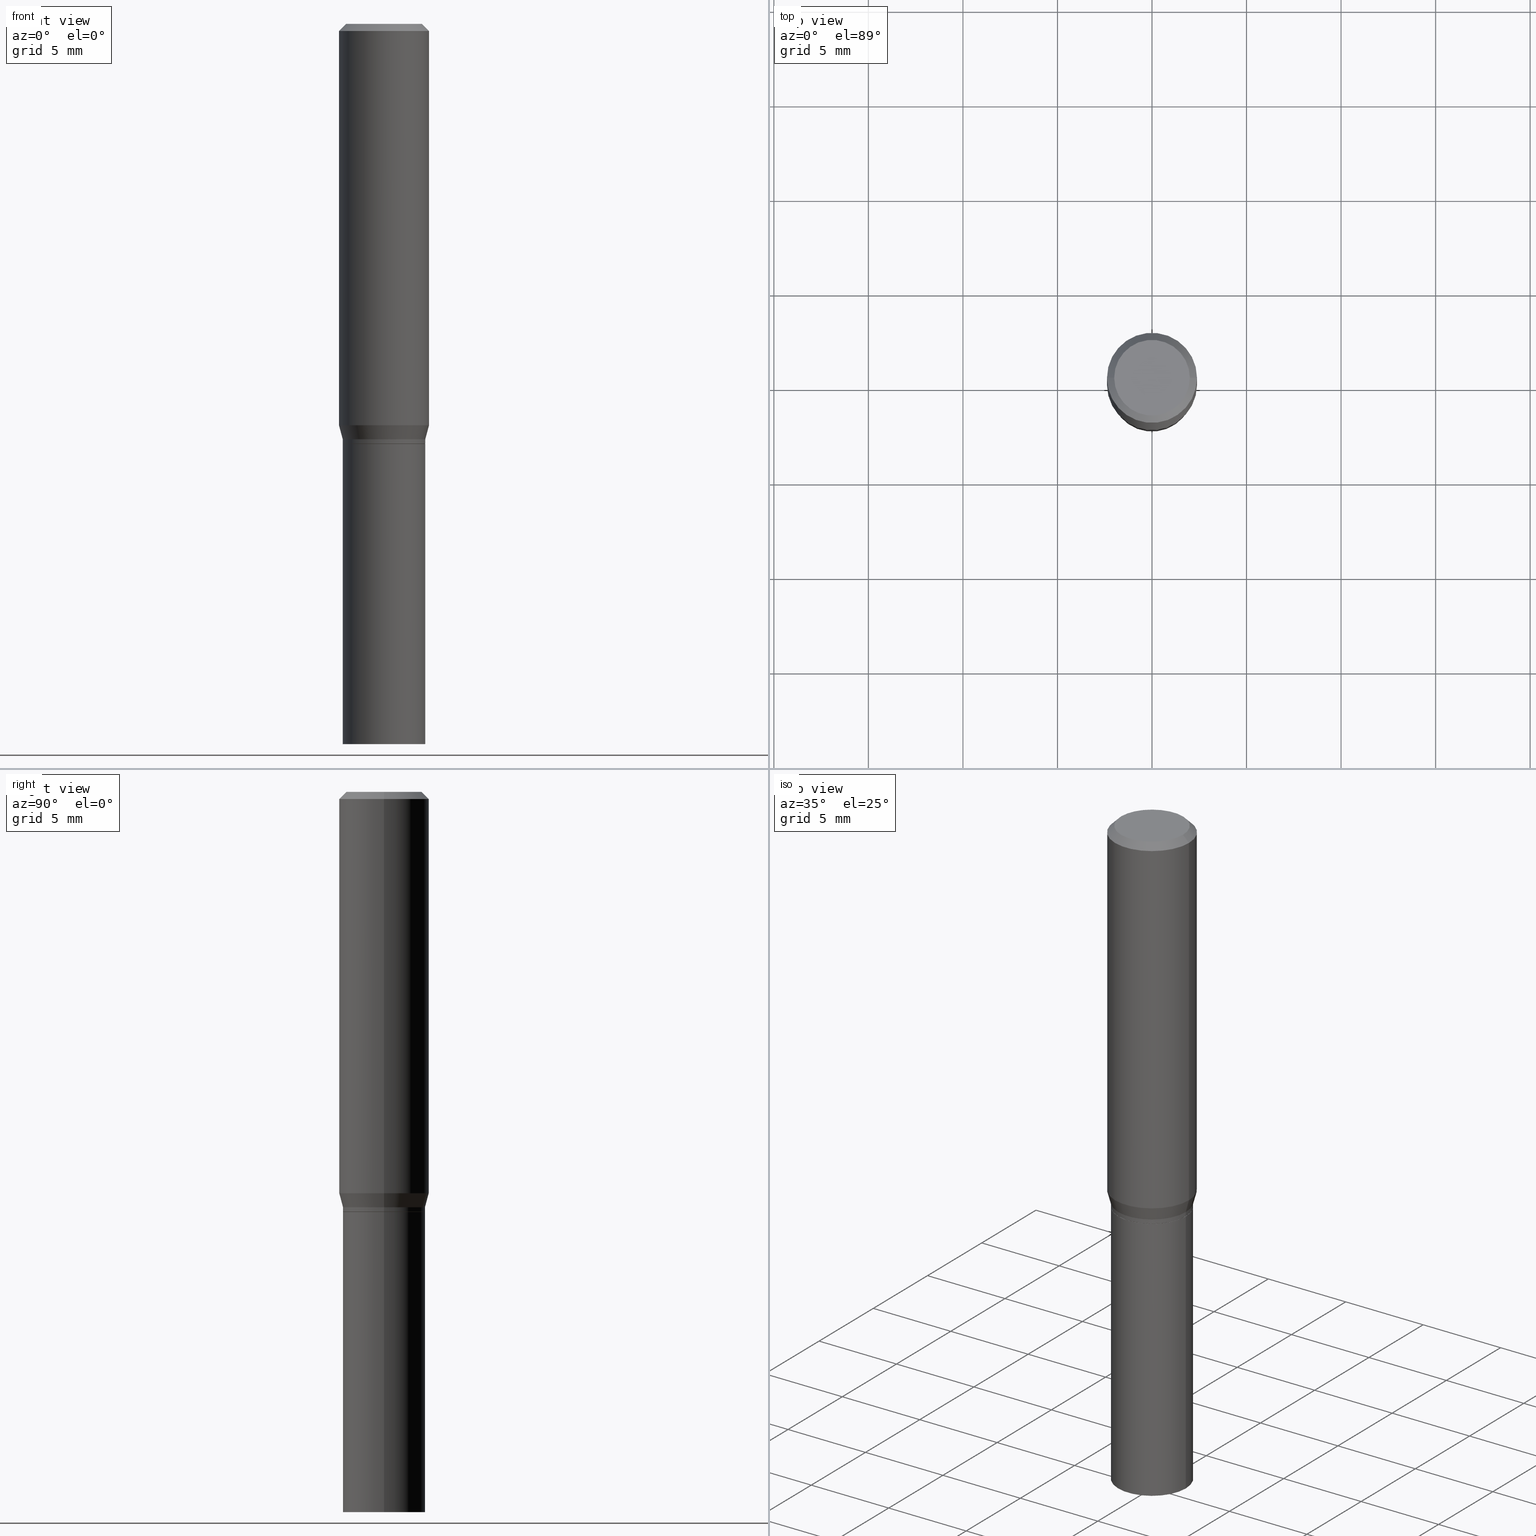
[diagram: canonical four-view strip — front | top / right | iso, engineering-drawing reading convention]
A machine part, canonical four-view strip (front | top / right | iso — engineering-drawing reading convention). The complete STEP part file that produces these views, byte-faithful:
ISO-10303-21;
HEADER;
FILE_DESCRIPTION (( 'STEP AP203' ),
    '1' );
FILE_NAME ('30521.STEP',
    '2024-03-13T16:14:01',
    ( '' ),
    ( '' ),
    'SwSTEP 2.0',
    'SolidWorks 2023',
    '' );
FILE_SCHEMA (( 'CONFIG_CONTROL_DESIGN' ));
ENDSEC;

DATA;
#1 = CALENDAR_DATE ( 2024, 13, 3 ) ;
#2 = ORIENTED_EDGE ( 'NONE', *, *, #67, .T. ) ;
#3 = ADVANCED_BREP_SHAPE_REPRESENTATION ( '30521', ( #286, #305, #405 ), #205 ) ;
#4 = CLOSED_SHELL ( 'NONE', ( #255, #117, #10, #383, #225, #243, #443, #290, #277, #280, #401, #398 ) ) ;
#5 = LOCAL_TIME ( 12, 14, 1.000000000000000000, #237 ) ;
#6 = CARTESIAN_POINT ( 'NONE',  ( -0.09375000000000001388, -2.252360534472345221E-15, -0.8358900037009627804 ) ) ;
#7 = ORIENTED_EDGE ( 'NONE', *, *, #369, .T. ) ;
#8 = CARTESIAN_POINT ( 'NONE',  ( 2.139785205411994522E-29, -3.055046171487752730E-15, -0.8750000000000001110 ) ) ;
#9 = ORIENTED_EDGE ( 'NONE', *, *, #37, .T. ) ;
#10 = ADVANCED_FACE ( 'NONE', ( #170 ), #36, .T. ) ;
#11 = VERTEX_POINT ( 'NONE', #320 ) ;
#12 = APPLICATION_PROTOCOL_DEFINITION ( 'international standard', 'config_control_design', 1994, #352 ) ;
#13 = LINE ( 'NONE', #135, #156 ) ;
#14 = ORIENTED_EDGE ( 'NONE', *, *, #67, .F. ) ;
#15 = CIRCLE ( 'NONE', #201, 0.08595000000000001250 ) ;
#16 = LOCAL_TIME ( 12, 14, 1.000000000000000000, #431 ) ;
#17 = EDGE_CURVE ( 'NONE', #178, #75, #13, .T. ) ;
#18 = PERSON_AND_ORGANIZATION ( #295, #247 ) ;
#19 = LINE ( 'NONE', #174, #322 ) ;
#20 = LINE ( 'NONE', #259, #432 ) ;
#21 = CIRCLE ( 'NONE', #307, 0.08594999999999998475 ) ;
#22 = CYLINDRICAL_SURFACE ( 'NONE', #144, 0.08594999999999998475 ) ;
#23 = FACE_OUTER_BOUND ( 'NONE', #445, .T. ) ;
#24 = ORIENTED_EDGE ( 'NONE', *, *, #373, .T. ) ;
#25 = APPROVAL ( #433, 'UNSPECIFIED' ) ;
#26 = LINE ( 'NONE', #390, #71 ) ;
#27 = DIRECTION ( 'NONE',  ( 1.000000000000000000, -6.982962677686265922E-15, 4.876176775795935793E-29 ) ) ;
#28 = CARTESIAN_POINT ( 'NONE',  ( -0.08594999999999998475, 6.107114813858060014E-16, -4.227824710074091590E-30 ) ) ;
#29 = EDGE_LOOP ( 'NONE', ( #95, #169, #196, #409 ) ) ;
#30 = LINE ( 'NONE', #420, #44 ) ;
#31 =( NAMED_UNIT ( * ) SI_UNIT ( $, .STERADIAN. ) SOLID_ANGLE_UNIT ( ) );
#32 = APPROVAL_DATE_TIME ( #274, #192 ) ;
#33 = CARTESIAN_POINT ( 'NONE',  ( 0.08594999999999998475, -5.837407650411852403E-15, -1.500000000000000222 ) ) ;
#34 = CARTESIAN_POINT ( 'NONE',  ( 3.668203209277704895E-29, -5.237222008264718177E-15, -1.500000000000000222 ) ) ;
#35 = PERSON_AND_ORGANIZATION ( #295, #247 ) ;
#36 = CONICAL_SURFACE ( 'NONE', #256, 0.09375000000000001388, 0.7853981633974473908 ) ;
#37 = EDGE_CURVE ( 'NONE', #454, #216, #172, .T. ) ;
#38 = APPROVAL_PERSON_ORGANIZATION ( #272, #192, #424 ) ;
#39 = CARTESIAN_POINT ( 'NONE',  ( -0.08595000000000004026, -2.442588949432524535E-15, -0.8745000000000000551 ) ) ;
#40 = VERTEX_POINT ( 'NONE', #39 ) ;
#41 = VERTEX_POINT ( 'NONE', #334 ) ;
#42 = EDGE_CURVE ( 'NONE', #317, #75, #412, .T. ) ;
#43 = APPROVAL_DATE_TIME ( #224, #25 ) ;
#44 = VECTOR ( 'NONE', #381, 39.37007874015748143 ) ;
#45 = AXIS2_PLACEMENT_3D ( 'NONE', #328, #415, #215 ) ;
#46 = EDGE_LOOP ( 'NONE', ( #64, #91, #311, #84 ) ) ;
#47 = EDGE_CURVE ( 'NONE', #40, #113, #76, .T. ) ;
#48 = CC_DESIGN_APPROVAL ( #55, ( #465 ) ) ;
#49 = ORIENTED_EDGE ( 'NONE', *, *, #362, .T. ) ;
#50 = ORIENTED_EDGE ( 'NONE', *, *, #362, .F. ) ;
#51 = VECTOR ( 'NONE', #53, 39.37007874015748143 ) ;
#52 = AXIS2_PLACEMENT_3D ( 'NONE', #34, #150, #452 ) ;
#53 = DIRECTION ( 'NONE',  ( -2.445468806185136877E-29, 3.491481338843145188E-15, 1.000000000000000000 ) ) ;
#54 = CARTESIAN_POINT ( 'NONE',  ( 0.000000000000000000, 0.000000000000000000, 0.000000000000000000 ) ) ;
#55 = APPROVAL ( #347, 'UNSPECIFIED' ) ;
#56 = DIRECTION ( 'NONE',  ( -2.445468806185136597E-29, 3.491481338843145583E-15, 1.000000000000000000 ) ) ;
#57 = DIRECTION ( 'NONE',  ( -2.445468806185136597E-29, 3.491481338843145583E-15, 1.000000000000000000 ) ) ;
#58 = CIRCLE ( 'NONE', #157, 0.08595000000000004026 ) ;
#59 = DIRECTION ( 'NONE',  ( -2.445468806185136597E-29, 3.491481338843145583E-15, 1.000000000000000000 ) ) ;
#60 = ADVANCED_FACE ( 'NONE', ( #309 ), #80, .F. ) ;
#61 = ORIENTED_EDGE ( 'NONE', *, *, #140, .T. ) ;
#62 = FACE_OUTER_BOUND ( 'NONE', #422, .T. ) ;
#63 = DIRECTION ( 'NONE',  ( 1.000000000000000000, -6.982962677686267499E-15, 4.876807983162778740E-29 ) ) ;
#64 = ORIENTED_EDGE ( 'NONE', *, *, #140, .F. ) ;
#65 = DIRECTION ( 'NONE',  ( -2.438088387897960049E-29, 3.491481338843145188E-15, 1.000000000000000000 ) ) ;
#66 = CARTESIAN_POINT ( 'NONE',  ( 2.138562471008902281E-29, -3.053300430818330832E-15, -0.8745000000000000551 ) ) ;
#67 = EDGE_CURVE ( 'NONE', #124, #239, #19, .T. ) ;
#68 = CALENDAR_DATE ( 2024, 13, 3 ) ;
#69 = CYLINDRICAL_SURFACE ( 'NONE', #210, 0.08594999999999998475 ) ;
#70 = FACE_OUTER_BOUND ( 'NONE', #29, .T. ) ;
#71 = VECTOR ( 'NONE', #179, 39.37007874015748143 ) ;
#72 = AXIS2_PLACEMENT_3D ( 'NONE', #279, #406, #444 ) ;
#73 = ORIENTED_EDGE ( 'NONE', *, *, #187, .T. ) ;
#74 = CARTESIAN_POINT ( 'NONE',  ( -0.08544999999999998430, -2.445238176606635736E-15, -0.8750000000000001110 ) ) ;
#75 = VERTEX_POINT ( 'NONE', #380 ) ;
#76 = LINE ( 'NONE', #236, #407 ) ;
#77 = DATE_TIME_ROLE ( 'classification_date' ) ;
#78 = DIRECTION ( 'NONE',  ( 1.000000000000000000, -6.982962677686268288E-15, 0.000000000000000000 ) ) ;
#79 = ORIENTED_EDGE ( 'NONE', *, *, #17, .F. ) ;
#80 = PLANE ( 'NONE',  #230 ) ;
#81 =( NAMED_UNIT ( * ) PLANE_ANGLE_UNIT ( ) SI_UNIT ( $, .RADIAN. ) );
#82 = AXIS2_PLACEMENT_3D ( 'NONE', #137, #349, #284 ) ;
#83 = EDGE_LOOP ( 'NONE', ( #249, #136, #208, #278 ) ) ;
#84 = ORIENTED_EDGE ( 'NONE', *, *, #198, .F. ) ;
#85 = DIRECTION ( 'NONE',  ( 0.000000000000000000, 0.000000000000000000, 1.000000000000000000 ) ) ;
#86 = EDGE_CURVE ( 'NONE', #113, #317, #288, .T. ) ;
#87 = ORIENTED_EDGE ( 'NONE', *, *, #132, .F. ) ;
#88 = APPROVAL_ROLE ( '' ) ;
#89 = EDGE_CURVE ( 'NONE', #447, #457, #127, .T. ) ;
#90 = CC_DESIGN_APPROVAL ( #25, ( #315 ) ) ;
#91 = ORIENTED_EDGE ( 'NONE', *, *, #42, .T. ) ;
#92 = DIRECTION ( 'NONE',  ( 1.000000000000000000, -6.982962677686265922E-15, 0.000000000000000000 ) ) ;
#93 = ORIENTED_EDGE ( 'NONE', *, *, #374, .F. ) ;
#94 = ADVANCED_FACE ( 'NONE', ( #302 ), #69, .T. ) ;
#95 = ORIENTED_EDGE ( 'NONE', *, *, #86, .F. ) ;
#96 = CARTESIAN_POINT ( 'NONE',  ( 0.000000000000000000, 0.000000000000000000, 0.000000000000000000 ) ) ;
#97 = DESIGN_CONTEXT ( 'detailed design', #352, 'design' ) ;
#98 = DIRECTION ( 'NONE',  ( -2.445468806185136597E-29, 3.491481338843145583E-15, 1.000000000000000000 ) ) ;
#99 = DIRECTION ( 'NONE',  ( 0.2588190451025214611, 1.565188264969621573E-15, 0.9659258262890682012 ) ) ;
#100 = DIRECTION ( 'NONE',  ( -2.445468806185136597E-29, 3.491481338843145583E-15, 1.000000000000000000 ) ) ;
#101 = CARTESIAN_POINT ( 'NONE',  ( 2.138562471008902281E-29, -3.053300430818330832E-15, -0.8745000000000000551 ) ) ;
#102 = CARTESIAN_POINT ( 'NONE',  ( -0.08595000000000001250, -2.409419876713514389E-15, -0.8649999999999998801 ) ) ;
#103 = ADVANCED_FACE ( 'NONE', ( #351 ), #22, .T. ) ;
#104 = SECURITY_CLASSIFICATION_LEVEL ( 'unclassified' ) ;
#105 = CARTESIAN_POINT ( 'NONE',  ( 0.000000000000000000, 0.000000000000000000, 0.000000000000000000 ) ) ;
#106 = DIRECTION ( 'NONE',  ( 1.000000000000000000, 0.000000000000000000, 0.000000000000000000 ) ) ;
#107 = DIRECTION ( 'NONE',  ( 1.000000000000000000, -6.982962677686265922E-15, 4.876176775795935793E-29 ) ) ;
#108 = CYLINDRICAL_SURFACE ( 'NONE', #122, 0.09375000000000001388 ) ;
#109 = PERSON_AND_ORGANIZATION ( #295, #247 ) ;
#110 = AXIS2_PLACEMENT_3D ( 'NONE', #165, #240, #123 ) ;
#111 = DATE_TIME_ROLE ( 'creation_date' ) ;
#112 = CC_DESIGN_DATE_AND_TIME_ASSIGNMENT ( #335, #77, ( #315 ) ) ;
#113 = VERTEX_POINT ( 'NONE', #221 ) ;
#114 = PERSON_AND_ORGANIZATION_ROLE ( 'creator' ) ;
#115 =( CONVERSION_BASED_UNIT ( 'INCH', #372 ) LENGTH_UNIT ( ) NAMED_UNIT ( #166 ) );
#116 = DATE_AND_TIME ( #120, #271 ) ;
#117 = ADVANCED_FACE ( 'NONE', ( #392 ), #195, .T. ) ;
#118 = ORIENTED_EDGE ( 'NONE', *, *, #89, .T. ) ;
#119 = DIRECTION ( 'NONE',  ( 0.7071067811865595631, -2.468850131082382884E-15, 0.7071067811865354713 ) ) ;
#120 = CALENDAR_DATE ( 2024, 13, 3 ) ;
#121 = CONICAL_SURFACE ( 'NONE', #246, 0.09375000000000001388, 0.7853981633974473908 ) ;
#122 = AXIS2_PLACEMENT_3D ( 'NONE', #96, #327, #107 ) ;
#123 = DIRECTION ( 'NONE',  ( 1.000000000000000000, -6.982962677686267499E-15, 0.000000000000000000 ) ) ;
#124 = VERTEX_POINT ( 'NONE', #33 ) ;
#125 = DIRECTION ( 'NONE',  ( -2.445468806185136877E-29, 3.491481338843145188E-15, 1.000000000000000000 ) ) ;
#126 = EDGE_CURVE ( 'NONE', #113, #178, #15, .T. ) ;
#127 = CIRCLE ( 'NONE', #287, 0.07875000000000001443 ) ;
#128 = CIRCLE ( 'NONE', #342, 0.08594999999999998475 ) ;
#129 = ORIENTED_EDGE ( 'NONE', *, *, #285, .F. ) ;
#130 = EDGE_CURVE ( 'NONE', #11, #148, #218, .T. ) ;
#131 = AXIS2_PLACEMENT_3D ( 'NONE', #451, #292, #325 ) ;
#132 = EDGE_CURVE ( 'NONE', #454, #40, #360, .T. ) ;
#133 = AXIS2_PLACEMENT_3D ( 'NONE', #229, #429, #329 ) ;
#134 = CARTESIAN_POINT ( 'NONE',  ( 2.115330517350142977E-29, -3.020131358099320686E-15, -0.8649999999999998801 ) ) ;
#135 = CARTESIAN_POINT ( 'NONE',  ( 0.08595000000000001250, -3.620317000246455307E-15, -0.8649999999999998801 ) ) ;
#136 = ORIENTED_EDGE ( 'NONE', *, *, #460, .F. ) ;
#137 = CARTESIAN_POINT ( 'NONE',  ( 5.499083108677934443E-16, 0.07875000000000001443, -2.663318858689025652E-16 ) ) ;
#138 = DIRECTION ( 'NONE',  ( 1.000000000000000000, -6.982962677686263555E-15, 0.000000000000000000 ) ) ;
#139 = DIRECTION ( 'NONE',  ( -2.445468806185136597E-29, 3.491481338843145583E-15, 1.000000000000000000 ) ) ;
#140 = EDGE_CURVE ( 'NONE', #317, #41, #250, .T. ) ;
#141 = ORIENTED_EDGE ( 'NONE', *, *, #187, .F. ) ;
#142 = CARTESIAN_POINT ( 'NONE',  ( 0.08544999999999998430, -3.651740332296043949E-15, -0.8750000000000001110 ) ) ;
#143 = DIRECTION ( 'NONE',  ( -2.445468806185136597E-29, 3.491481338843145583E-15, 1.000000000000000000 ) ) ;
#144 = AXIS2_PLACEMENT_3D ( 'NONE', #453, #425, #266 ) ;
#145 = PERSON_AND_ORGANIZATION ( #295, #247 ) ;
#146 = CIRCLE ( 'NONE', #110, 0.08544999999999998430 ) ;
#147 = DIRECTION ( 'NONE',  ( 1.000000000000000000, -6.982962677686267499E-15, 0.000000000000000000 ) ) ;
#148 = VERTEX_POINT ( 'NONE', #379 ) ;
#149 = CARTESIAN_POINT ( 'NONE',  ( 0.08594999999999998475, -3.655231813634886956E-15, -0.8750000000000001110 ) ) ;
#150 = DIRECTION ( 'NONE',  ( -2.445468806185136597E-29, 3.491481338843145583E-15, 1.000000000000000000 ) ) ;
#151 = UNCERTAINTY_MEASURE_WITH_UNIT (LENGTH_MEASURE( 1.000000000000000082E-05 ), #115, 'distance_accuracy_value', 'NONE');
#152 = PERSON_AND_ORGANIZATION_ROLE ( 'classification_officer' ) ;
#153 = ORIENTED_EDGE ( 'NONE', *, *, #47, .F. ) ;
#154 = DIRECTION ( 'NONE',  ( -2.445468806185136597E-29, 3.491481338843145583E-15, 1.000000000000000000 ) ) ;
#155 = CC_DESIGN_PERSON_AND_ORGANIZATION_ASSIGNMENT ( #162, #318, ( #235 ) ) ;
#156 = VECTOR ( 'NONE', #99, 39.37007874015747433 ) ;
#157 = AXIS2_PLACEMENT_3D ( 'NONE', #101, #326, #138 ) ;
#158 = DIRECTION ( 'NONE',  ( -2.445468806185136877E-29, 3.491481338843145188E-15, 1.000000000000000000 ) ) ;
#159 = DIRECTION ( 'NONE',  ( 1.000000000000000000, -6.982962677686265922E-15, 4.876176775795935793E-29 ) ) ;
#160 = LINE ( 'NONE', #438, #331 ) ;
#161 = EDGE_CURVE ( 'NONE', #204, #178, #20, .T. ) ;
#162 = PERSON_AND_ORGANIZATION ( #295, #247 ) ;
#163 = FACE_OUTER_BOUND ( 'NONE', #83, .T. ) ;
#164 = ORIENTED_EDGE ( 'NONE', *, *, #126, .F. ) ;
#165 = CARTESIAN_POINT ( 'NONE',  ( 2.139785205411994522E-29, -3.055046171487752730E-15, -0.8750000000000001110 ) ) ;
#166 = DIMENSIONAL_EXPONENTS ( 1.000000000000000000, 0.000000000000000000, 0.000000000000000000, 0.000000000000000000, 0.000000000000000000, 0.000000000000000000, 0.000000000000000000 ) ;
#167 = CIRCLE ( 'NONE', #395, 0.08594999999999998475 ) ;
#168 = EDGE_LOOP ( 'NONE', ( #219, #118 ) ) ;
#169 = ORIENTED_EDGE ( 'NONE', *, *, #126, .T. ) ;
#170 = FACE_OUTER_BOUND ( 'NONE', #389, .T. ) ;
#171 = ORIENTED_EDGE ( 'NONE', *, *, #161, .T. ) ;
#172 = CIRCLE ( 'NONE', #337, 0.08544999999999998430 ) ;
#173 = ORIENTED_EDGE ( 'NONE', *, *, #303, .T. ) ;
#174 = CARTESIAN_POINT ( 'NONE',  ( 0.08594999999999998475, -6.001856421471345220E-16, 4.191073938796606539E-30 ) ) ;
#175 = EDGE_CURVE ( 'NONE', #447, #402, #30, .T. ) ;
#176 = AXIS2_PLACEMENT_3D ( 'NONE', #105, #220, #361 ) ;
#177 = EDGE_CURVE ( 'NONE', #75, #402, #26, .T. ) ;
#178 = VERTEX_POINT ( 'NONE', #354 ) ;
#179 = DIRECTION ( 'NONE',  ( -2.445468806185136877E-29, 3.491481338843145188E-15, 1.000000000000000000 ) ) ;
#180 = DIRECTION ( 'NONE',  ( 1.000000000000000000, -6.982962677686267499E-15, 4.876807983162778740E-29 ) ) ;
#181 = CARTESIAN_POINT ( 'NONE',  ( 2.139785205411994522E-29, -3.055046171487752730E-15, -0.8750000000000001110 ) ) ;
#182 = DIRECTION ( 'NONE',  ( 1.000000000000000000, -6.982962677686265922E-15, 4.876176775795935793E-29 ) ) ;
#183 = CYLINDRICAL_SURFACE ( 'NONE', #238, 0.08595000000000002638 ) ;
#184 = DIRECTION ( 'NONE',  ( -0.7071067811865469066, 2.468850131082250355E-15, -0.7071067811865481278 ) ) ;
#185 = AXIS2_PLACEMENT_3D ( 'NONE', #227, #65, #182 ) ;
#186 = APPROVAL_DATE_TIME ( #116, #55 ) ;
#187 = EDGE_CURVE ( 'NONE', #11, #124, #167, .T. ) ;
#188 = CARTESIAN_POINT ( 'NONE',  ( -0.08544999999999998430, -2.447887403780747331E-15, -0.8750000000000001110 ) ) ;
#189 = ADVANCED_FACE ( 'NONE', ( #423 ), #461, .F. ) ;
#190 = ORIENTED_EDGE ( 'NONE', *, *, #313, .F. ) ;
#191 = COORDINATED_UNIVERSAL_TIME_OFFSET ( 5, 0, .BEHIND. ) ;
#192 = APPROVAL ( #394, 'UNSPECIFIED' ) ;
#193 = EDGE_LOOP ( 'NONE', ( #7, #61, #190, #283 ) ) ;
#194 = DIRECTION ( 'NONE',  ( 1.000000000000000000, -6.982962677686265922E-15, 0.000000000000000000 ) ) ;
#195 = CONICAL_SURFACE ( 'NONE', #276, 0.08544999999999998430, 0.7853981633974653764 ) ;
#196 = ORIENTED_EDGE ( 'NONE', *, *, #17, .T. ) ;
#197 = DIRECTION ( 'NONE',  ( -2.445468806185136597E-29, 3.491481338843145583E-15, 1.000000000000000000 ) ) ;
#198 = EDGE_CURVE ( 'NONE', #41, #402, #298, .T. ) ;
#199 = ORIENTED_EDGE ( 'NONE', *, *, #313, .T. ) ;
#200 = DIRECTION ( 'NONE',  ( 2.445468806185136597E-29, -3.491481338843145583E-15, -1.000000000000000000 ) ) ;
#201 = AXIS2_PLACEMENT_3D ( 'NONE', #384, #59, #92 ) ;
#202 = AXIS2_PLACEMENT_3D ( 'NONE', #464, #363, #439 ) ;
#203 = ORIENTED_EDGE ( 'NONE', *, *, #47, .T. ) ;
#204 = VERTEX_POINT ( 'NONE', #386 ) ;
#205 =( GEOMETRIC_REPRESENTATION_CONTEXT ( 3 ) GLOBAL_UNCERTAINTY_ASSIGNED_CONTEXT ( ( #151 ) ) GLOBAL_UNIT_ASSIGNED_CONTEXT ( ( #115, #81, #31 ) ) REPRESENTATION_CONTEXT ( 'NONE', 'WORKASPACE' ) );
#206 = DIRECTION ( 'NONE',  ( 2.445468806185136597E-29, -3.491481338843145583E-15, -1.000000000000000000 ) ) ;
#207 = CC_DESIGN_PERSON_AND_ORGANIZATION_ASSIGNMENT ( #109, #152, ( #315 ) ) ;
#208 = ORIENTED_EDGE ( 'NONE', *, *, #231, .T. ) ;
#209 = EDGE_LOOP ( 'NONE', ( #87, #9, #343, #377 ) ) ;
#210 = AXIS2_PLACEMENT_3D ( 'NONE', #54, #213, #419 ) ;
#211 = APPLICATION_CONTEXT ( 'configuration controlled 3d designs of mechanical parts and assemblies' ) ;
#212 = PRODUCT_DEFINITION_FORMATION_WITH_SPECIFIED_SOURCE ( 'ANY', '', #235, .NOT_KNOWN. ) ;
#213 = DIRECTION ( 'NONE',  ( -2.445468806185136597E-29, 3.491481338843145583E-15, 1.000000000000000000 ) ) ;
#214 = VECTOR ( 'NONE', #261, 39.37007874015747433 ) ;
#215 = DIRECTION ( 'NONE',  ( 1.000000000000000000, -6.982962677686265922E-15, 4.876176775795935793E-29 ) ) ;
#216 = VERTEX_POINT ( 'NONE', #142 ) ;
#217 = LINE ( 'NONE', #301, #269 ) ;
#218 = LINE ( 'NONE', #28, #314 ) ;
#219 = ORIENTED_EDGE ( 'NONE', *, *, #460, .T. ) ;
#220 = DIRECTION ( 'NONE',  ( -2.445468806185136597E-29, 3.491481338843145583E-15, 1.000000000000000000 ) ) ;
#221 = CARTESIAN_POINT ( 'NONE',  ( -0.08595000000000001250, -2.330890205592929411E-15, -0.8649999999999998801 ) ) ;
#222 = ORIENTED_EDGE ( 'NONE', *, *, #285, .T. ) ;
#223 = CARTESIAN_POINT ( 'NONE',  ( 3.668203209277705088E-31, -5.237222008264718399E-17, -0.01499999999999999944 ) ) ;
#224 = DATE_AND_TIME ( #68, #257 ) ;
#225 = ADVANCED_FACE ( 'NONE', ( #62 ), #375, .T. ) ;
#226 = CARTESIAN_POINT ( 'NONE',  ( 2.139785205411994522E-29, -3.055046171487752730E-15, -0.8750000000000001110 ) ) ;
#227 = CARTESIAN_POINT ( 'NONE',  ( 3.576687321579069994E-29, -5.368277968210015545E-15, -1.500000000000000222 ) ) ;
#228 = CARTESIAN_POINT ( 'NONE',  ( 2.139785205411994522E-29, -3.055046171487752730E-15, -0.8750000000000001110 ) ) ;
#229 = CARTESIAN_POINT ( 'NONE',  ( 2.139785205411994522E-29, -3.055046171487752730E-15, -0.8750000000000001110 ) ) ;
#230 = AXIS2_PLACEMENT_3D ( 'NONE', #366, #312, #346 ) ;
#231 = EDGE_CURVE ( 'NONE', #457, #41, #217, .T. ) ;
#232 = EDGE_LOOP ( 'NONE', ( #353, #203, #129, #367 ) ) ;
#233 = CARTESIAN_POINT ( 'NONE',  ( -4.217098251943042903E-46, 6.020898656931179793E-32, 1.724453912999037237E-17 ) ) ;
#234 = CALENDAR_DATE ( 2024, 13, 3 ) ;
#235 = PRODUCT ( '30521', '30521', '', ( #434 ) ) ;
#236 = CARTESIAN_POINT ( 'NONE',  ( -0.08595000000000002638, 6.107114813858062972E-16, -4.227824710074092991E-30 ) ) ;
#237 = COORDINATED_UNIVERSAL_TIME_OFFSET ( 5, 0, .BEHIND. ) ;
#238 = AXIS2_PLACEMENT_3D ( 'NONE', #466, #139, #27 ) ;
#239 = VERTEX_POINT ( 'NONE', #149 ) ;
#240 = DIRECTION ( 'NONE',  ( -2.445468806185136597E-29, 3.491481338843145583E-15, 1.000000000000000000 ) ) ;
#241 = AXIS2_PLACEMENT_3D ( 'NONE', #310, #154, #436 ) ;
#242 = CIRCLE ( 'NONE', #289, 0.07875000000000001443 ) ;
#243 = ADVANCED_FACE ( 'NONE', ( #70 ), #440, .T. ) ;
#244 = EDGE_LOOP ( 'NONE', ( #248, #368, #437, #14 ) ) ;
#245 = DIRECTION ( 'NONE',  ( -2.438088387897960049E-29, 3.491481338843145188E-15, 1.000000000000000000 ) ) ;
#246 = AXIS2_PLACEMENT_3D ( 'NONE', #336, #200, #273 ) ;
#247 = ORGANIZATION ( 'UNSPECIFIED', 'UNSPECIFIED', '' ) ;
#248 = ORIENTED_EDGE ( 'NONE', *, *, #430, .T. ) ;
#249 = ORIENTED_EDGE ( 'NONE', *, *, #175, .F. ) ;
#250 = LINE ( 'NONE', #378, #51 ) ;
#251 = CARTESIAN_POINT ( 'NONE',  ( 2.139785205411994522E-29, -3.055046171487752730E-15, -0.8750000000000001110 ) ) ;
#252 = APPLICATION_PROTOCOL_DEFINITION ( 'international standard', 'config_control_design', 1994, #211 ) ;
#253 = CARTESIAN_POINT ( 'NONE',  ( -0.07875000000000001443, 5.760944209091169839E-16, 1.724453912998643423E-17 ) ) ;
#254 = DIRECTION ( 'NONE',  ( 1.000000000000000000, -6.982962677686267499E-15, 0.000000000000000000 ) ) ;
#255 = ADVANCED_FACE ( 'NONE', ( #393 ), #304, .T. ) ;
#256 = AXIS2_PLACEMENT_3D ( 'NONE', #371, #206, #344 ) ;
#257 = LOCAL_TIME ( 12, 14, 1.000000000000000000, #391 ) ;
#258 = ORIENTED_EDGE ( 'NONE', *, *, #130, .F. ) ;
#259 = CARTESIAN_POINT ( 'NONE',  ( 0.08595000000000002638, -6.001856421471347192E-16, 4.191073938796607941E-30 ) ) ;
#260 = FACE_OUTER_BOUND ( 'NONE', #193, .T. ) ;
#261 = DIRECTION ( 'NONE',  ( -0.2588190451025214611, 5.211531920934551042E-15, 0.9659258262890682012 ) ) ;
#262 = ORIENTED_EDGE ( 'NONE', *, *, #303, .F. ) ;
#263 = DIRECTION ( 'NONE',  ( -2.445468806185136877E-29, 3.491481338843145188E-15, 1.000000000000000000 ) ) ;
#264 = CARTESIAN_POINT ( 'NONE',  ( 0.09375000000000001388, -7.070249711157346819E-16, -0.01499999999999999944 ) ) ;
#265 = APPROVAL_ROLE ( '' ) ;
#266 = DIRECTION ( 'NONE',  ( 1.000000000000000000, -6.982962677686266711E-15, 4.876176775795936353E-29 ) ) ;
#267 = CARTESIAN_POINT ( 'NONE',  ( 3.668203209277704895E-29, -5.237222008264718177E-15, -1.500000000000000222 ) ) ;
#268 = PERSON_AND_ORGANIZATION_ROLE ( 'design_supplier' ) ;
#269 = VECTOR ( 'NONE', #184, 39.37007874015748143 ) ;
#270 = DIRECTION ( 'NONE',  ( 1.000000000000000000, -6.982962677686263555E-15, 0.000000000000000000 ) ) ;
#271 = LOCAL_TIME ( 12, 14, 1.000000000000000000, #293 ) ;
#272 = PERSON_AND_ORGANIZATION ( #295, #247 ) ;
#273 = DIRECTION ( 'NONE',  ( -1.000000000000000000, 6.982962677686265922E-15, 0.000000000000000000 ) ) ;
#274 = DATE_AND_TIME ( #1, #16 ) ;
#275 = CARTESIAN_POINT ( 'NONE',  ( 3.668203209277705088E-31, -5.237222008264718399E-17, -0.01499999999999999944 ) ) ;
#276 = AXIS2_PLACEMENT_3D ( 'NONE', #226, #98, #254 ) ;
#277 = ADVANCED_FACE ( 'NONE', ( #416 ), #455, .F. ) ;
#278 = ORIENTED_EDGE ( 'NONE', *, *, #198, .T. ) ;
#279 = CARTESIAN_POINT ( 'NONE',  ( 2.044142929452682766E-29, -2.918494349247439540E-15, -0.8358900037009627804 ) ) ;
#280 = ADVANCED_FACE ( 'NONE', ( #291 ), #410, .F. ) ;
#281 = CLOSED_SHELL ( 'NONE', ( #94, #189, #103, #60 ) ) ;
#282 = CIRCLE ( 'NONE', #396, 0.09375000000000001388 ) ;
#283 = ORIENTED_EDGE ( 'NONE', *, *, #177, .F. ) ;
#284 = DIRECTION ( 'NONE',  ( -1.000000000000000000, 6.982962677686265922E-15, -4.876176775795935793E-29 ) ) ;
#285 = EDGE_CURVE ( 'NONE', #178, #113, #404, .T. ) ;
#286 = MANIFOLD_SOLID_BREP ( 'Body-Move/Copy2[1]', #281 ) ;
#287 = AXIS2_PLACEMENT_3D ( 'NONE', #388, #414, #63 ) ;
#288 = LINE ( 'NONE', #102, #214 ) ;
#289 = AXIS2_PLACEMENT_3D ( 'NONE', #233, #355, #180 ) ;
#290 = ADVANCED_FACE ( 'NONE', ( #163 ), #121, .T. ) ;
#291 = FACE_OUTER_BOUND ( 'NONE', #358, .T. ) ;
#292 = DIRECTION ( 'NONE',  ( -2.445468806185136597E-29, 3.491481338843145583E-15, 1.000000000000000000 ) ) ;
#293 = COORDINATED_UNIVERSAL_TIME_OFFSET ( 5, 0, .BEHIND. ) ;
#294 =( LENGTH_UNIT ( ) NAMED_UNIT ( * ) SI_UNIT ( $, .METRE. ) );
#295 = PERSON ( 'UNSPECIFIED', 'UNSPECIFIED', 'UNSPECIFIED', ('UNSPECIFIED'), ('UNSPECIFIED'), ('UNSPECIFIED') ) ;
#296 = CC_DESIGN_PERSON_AND_ORGANIZATION_ASSIGNMENT ( #330, #268, ( #212 ) ) ;
#297 = ORIENTED_EDGE ( 'NONE', *, *, #418, .T. ) ;
#298 = CIRCLE ( 'NONE', #421, 0.09375000000000001388 ) ;
#299 = DIRECTION ( 'NONE',  ( -2.445468806185136597E-29, 3.491481338843145583E-15, 1.000000000000000000 ) ) ;
#300 = ORIENTED_EDGE ( 'NONE', *, *, #231, .F. ) ;
#301 = CARTESIAN_POINT ( 'NONE',  ( -0.09375000000000001388, 6.022805309504404249E-16, -0.01499999999999999944 ) ) ;
#302 = FACE_OUTER_BOUND ( 'NONE', #244, .T. ) ;
#303 = EDGE_CURVE ( 'NONE', #148, #239, #21, .T. ) ;
#304 = CYLINDRICAL_SURFACE ( 'NONE', #176, 0.08595000000000002638 ) ;
#305 = MANIFOLD_SOLID_BREP ( 'Body-Move/Copy2[2]', #4 ) ;
#306 = FACE_OUTER_BOUND ( 'NONE', #209, .T. ) ;
#307 = AXIS2_PLACEMENT_3D ( 'NONE', #8, #319, #78 ) ;
#308 = CIRCLE ( 'NONE', #52, 0.08594999999999998475 ) ;
#309 = FACE_OUTER_BOUND ( 'NONE', #348, .T. ) ;
#310 = CARTESIAN_POINT ( 'NONE',  ( 2.115330517350142977E-29, -3.020131358099320686E-15, -0.8649999999999998801 ) ) ;
#311 = ORIENTED_EDGE ( 'NONE', *, *, #177, .T. ) ;
#312 = DIRECTION ( 'NONE',  ( 2.438088387897960049E-29, -3.491481338843145188E-15, -1.000000000000000000 ) ) ;
#313 = EDGE_CURVE ( 'NONE', #402, #41, #282, .T. ) ;
#314 = VECTOR ( 'NONE', #456, 39.37007874015748143 ) ;
#315 = SECURITY_CLASSIFICATION ( '', '', #104 ) ;
#316 = ORIENTED_EDGE ( 'NONE', *, *, #89, .F. ) ;
#317 = VERTEX_POINT ( 'NONE', #6 ) ;
#318 = PERSON_AND_ORGANIZATION_ROLE ( 'design_owner' ) ;
#319 = DIRECTION ( 'NONE',  ( -2.445468806185136597E-29, 3.491481338843145583E-15, 1.000000000000000000 ) ) ;
#320 = CARTESIAN_POINT ( 'NONE',  ( -0.08594999999999998475, -3.535422608490429551E-15, -1.500000000000000222 ) ) ;
#321 = CC_DESIGN_SECURITY_CLASSIFICATION ( #315, ( #212 ) ) ;
#322 = VECTOR ( 'NONE', #125, 39.37007874015748143 ) ;
#323 = CIRCLE ( 'NONE', #441, 0.08595000000000004026 ) ;
#324 = EDGE_LOOP ( 'NONE', ( #258, #73, #2, #262 ) ) ;
#325 = DIRECTION ( 'NONE',  ( 1.000000000000000000, -6.982962677686265922E-15, 0.000000000000000000 ) ) ;
#326 = DIRECTION ( 'NONE',  ( -2.445468806185136597E-29, 3.491481338843145583E-15, 1.000000000000000000 ) ) ;
#327 = DIRECTION ( 'NONE',  ( -2.445468806185136597E-29, 3.491481338843145583E-15, 1.000000000000000000 ) ) ;
#328 = CARTESIAN_POINT ( 'NONE',  ( 0.000000000000000000, 0.000000000000000000, 0.000000000000000000 ) ) ;
#329 = DIRECTION ( 'NONE',  ( 1.000000000000000000, -6.982962677686267499E-15, 0.000000000000000000 ) ) ;
#330 = PERSON_AND_ORGANIZATION ( #295, #247 ) ;
#331 = VECTOR ( 'NONE', #119, 39.37007874015748143 ) ;
#332 = DIRECTION ( 'NONE',  ( 1.000000000000000000, -6.982962677686265922E-15, 0.000000000000000000 ) ) ;
#333 = DIRECTION ( 'NONE',  ( -0.7071067811865595631, 7.493145998870398336E-15, 0.7071067811865354713 ) ) ;
#334 = CARTESIAN_POINT ( 'NONE',  ( -0.09375000000000001388, -8.192994698899494840E-16, -0.01499999999999999944 ) ) ;
#335 = DATE_AND_TIME ( #459, #382 ) ;
#336 = CARTESIAN_POINT ( 'NONE',  ( 3.668203209277705088E-31, -5.237222008264718399E-17, -0.01499999999999999944 ) ) ;
#337 = AXIS2_PLACEMENT_3D ( 'NONE', #181, #299, #147 ) ;
#338 = CONICAL_SURFACE ( 'NONE', #133, 0.08544999999999998430, 0.7853981633974653764 ) ;
#339 = EDGE_CURVE ( 'NONE', #216, #204, #160, .T. ) ;
#340 = ORIENTED_EDGE ( 'NONE', *, *, #369, .F. ) ;
#341 = AXIS2_PLACEMENT_3D ( 'NONE', #134, #458, #357 ) ;
#342 = AXIS2_PLACEMENT_3D ( 'NONE', #228, #57, #462 ) ;
#343 = ORIENTED_EDGE ( 'NONE', *, *, #339, .T. ) ;
#344 = DIRECTION ( 'NONE',  ( -1.000000000000000000, 6.982962677686265922E-15, 0.000000000000000000 ) ) ;
#345 = AXIS2_PLACEMENT_3D ( 'NONE', #251, #245, #159 ) ;
#346 = DIRECTION ( 'NONE',  ( -1.000000000000000000, 6.982962677686265922E-15, -4.876176775795935793E-29 ) ) ;
#347 = APPROVAL_STATUS ( 'not_yet_approved' ) ;
#348 = EDGE_LOOP ( 'NONE', ( #24, #173 ) ) ;
#349 = DIRECTION ( 'NONE',  ( 2.438088387897960049E-29, -3.491481338843145188E-15, -1.000000000000000000 ) ) ;
#350 = CC_DESIGN_PERSON_AND_ORGANIZATION_ASSIGNMENT ( #35, #114, ( #465 ) ) ;
#351 = FACE_OUTER_BOUND ( 'NONE', #324, .T. ) ;
#352 = APPLICATION_CONTEXT ( 'configuration controlled 3d designs of mechanical parts and assemblies' ) ;
#353 = ORIENTED_EDGE ( 'NONE', *, *, #374, .T. ) ;
#354 = CARTESIAN_POINT ( 'NONE',  ( 0.08595000000000001250, -3.620317000246455307E-15, -0.8649999999999998801 ) ) ;
#355 = DIRECTION ( 'NONE',  ( -2.445468806185136597E-29, 3.491481338843145583E-15, 1.000000000000000000 ) ) ;
#356 = ORIENTED_EDGE ( 'NONE', *, *, #37, .F. ) ;
#357 = DIRECTION ( 'NONE',  ( 1.000000000000000000, -6.982962677686265922E-15, 0.000000000000000000 ) ) ;
#358 = EDGE_LOOP ( 'NONE', ( #50, #356 ) ) ;
#359 = DIRECTION ( 'NONE',  ( 1.000000000000000000, -6.982962677686261977E-15, 0.000000000000000000 ) ) ;
#360 = LINE ( 'NONE', #188, #449 ) ;
#361 = DIRECTION ( 'NONE',  ( 1.000000000000000000, -6.982962677686265922E-15, 4.876176775795935793E-29 ) ) ;
#362 = EDGE_CURVE ( 'NONE', #216, #454, #146, .T. ) ;
#363 = DIRECTION ( 'NONE',  ( -2.445468806185136597E-29, 3.491481338843145583E-15, 1.000000000000000000 ) ) ;
#364 = CC_DESIGN_DATE_AND_TIME_ASSIGNMENT ( #365, #111, ( #465 ) ) ;
#365 = DATE_AND_TIME ( #234, #5 ) ;
#366 = CARTESIAN_POINT ( 'NONE',  ( 6.001856421471558213E-16, 0.08594999999999693163, -0.8750000000000003331 ) ) ;
#367 = ORIENTED_EDGE ( 'NONE', *, *, #161, .F. ) ;
#368 = ORIENTED_EDGE ( 'NONE', *, *, #130, .T. ) ;
#369 = EDGE_CURVE ( 'NONE', #75, #317, #376, .T. ) ;
#370 = CARTESIAN_POINT ( 'NONE',  ( 0.000000000000000000, 0.000000000000000000, 0.000000000000000000 ) ) ;
#371 = CARTESIAN_POINT ( 'NONE',  ( 3.668203209277705088E-31, -5.237222008264718399E-17, -0.01499999999999999944 ) ) ;
#372 = LENGTH_MEASURE_WITH_UNIT ( LENGTH_MEASURE( 0.02539999999999999897 ), #294 );
#373 = EDGE_CURVE ( 'NONE', #239, #148, #128, .T. ) ;
#374 = EDGE_CURVE ( 'NONE', #204, #40, #58, .T. ) ;
#375 = CONICAL_SURFACE ( 'NONE', #341, 0.08595000000000001250, 0.2617993877991501295 ) ;
#376 = CIRCLE ( 'NONE', #72, 0.09375000000000001388 ) ;
#377 = ORIENTED_EDGE ( 'NONE', *, *, #418, .F. ) ;
#378 = CARTESIAN_POINT ( 'NONE',  ( -0.09375000000000001388, 6.661338147750940229E-16, -4.611501647113973995E-30 ) ) ;
#379 = CARTESIAN_POINT ( 'NONE',  ( -0.08594999999999998475, -3.535422608490429551E-15, -0.8750000000000001110 ) ) ;
#380 = CARTESIAN_POINT ( 'NONE',  ( 0.09375000000000001388, -3.573147100280526650E-15, -0.8358900037009627804 ) ) ;
#381 = DIRECTION ( 'NONE',  ( 0.7071067811865469066, -7.319954787623254468E-15, -0.7071067811865481278 ) ) ;
#382 = LOCAL_TIME ( 12, 14, 1.000000000000000000, #191 ) ;
#383 = ADVANCED_FACE ( 'NONE', ( #260 ), #387, .T. ) ;
#384 = CARTESIAN_POINT ( 'NONE',  ( 2.115330517350142977E-29, -3.020131358099320686E-15, -0.8649999999999998801 ) ) ;
#385 = ORIENTED_EDGE ( 'NONE', *, *, #86, .T. ) ;
#386 = CARTESIAN_POINT ( 'NONE',  ( 0.08595000000000004026, -3.653486072965466241E-15, -0.8745000000000000551 ) ) ;
#387 = CYLINDRICAL_SURFACE ( 'NONE', #45, 0.09375000000000001388 ) ;
#388 = CARTESIAN_POINT ( 'NONE',  ( -4.217098251943042903E-46, 6.020898656931179793E-32, 1.724453912999037237E-17 ) ) ;
#389 = EDGE_LOOP ( 'NONE', ( #316, #411, #199, #300 ) ) ;
#390 = CARTESIAN_POINT ( 'NONE',  ( 0.09375000000000001388, -6.546527510330875041E-16, 4.571415727308690506E-30 ) ) ;
#391 = COORDINATED_UNIVERSAL_TIME_OFFSET ( 5, 0, .BEHIND. ) ;
#392 = FACE_OUTER_BOUND ( 'NONE', #403, .T. ) ;
#393 = FACE_OUTER_BOUND ( 'NONE', #232, .T. ) ;
#394 = APPROVAL_STATUS ( 'not_yet_approved' ) ;
#395 = AXIS2_PLACEMENT_3D ( 'NONE', #267, #56, #359 ) ;
#396 = AXIS2_PLACEMENT_3D ( 'NONE', #275, #197, #194 ) ;
#397 = CARTESIAN_POINT ( 'NONE',  ( 0.07875000000000001443, -6.179040623491182236E-16, 1.724453912999445534E-17 ) ) ;
#398 = ADVANCED_FACE ( 'NONE', ( #23 ), #183, .T. ) ;
#399 = PRODUCT_DEFINITION_SHAPE ( 'NONE', 'NONE',  #465 ) ;
#400 = PERSON_AND_ORGANIZATION ( #295, #247 ) ;
#401 = ADVANCED_FACE ( 'NONE', ( #306 ), #338, .T. ) ;
#402 = VERTEX_POINT ( 'NONE', #264 ) ;
#403 = EDGE_LOOP ( 'NONE', ( #49, #426, #93, #435 ) ) ;
#404 = CIRCLE ( 'NONE', #241, 0.08595000000000001250 ) ;
#405 = AXIS2_PLACEMENT_3D ( 'NONE', #370, #85, #106 ) ;
#406 = DIRECTION ( 'NONE',  ( -2.445468806185136597E-29, 3.491481338843145583E-15, 1.000000000000000000 ) ) ;
#407 = VECTOR ( 'NONE', #158, 39.37007874015748143 ) ;
#408 = PRODUCT_RELATED_PRODUCT_CATEGORY ( 'detail', '', ( #235 ) ) ;
#409 = ORIENTED_EDGE ( 'NONE', *, *, #42, .F. ) ;
#410 = PLANE ( 'NONE',  #345 ) ;
#411 = ORIENTED_EDGE ( 'NONE', *, *, #175, .T. ) ;
#412 = CIRCLE ( 'NONE', #202, 0.09375000000000001388 ) ;
#413 = CC_DESIGN_APPROVAL ( #192, ( #212 ) ) ;
#414 = DIRECTION ( 'NONE',  ( -2.445468806185136597E-29, 3.491481338843145583E-15, 1.000000000000000000 ) ) ;
#415 = DIRECTION ( 'NONE',  ( -2.445468806185136597E-29, 3.491481338843145583E-15, 1.000000000000000000 ) ) ;
#416 = FACE_OUTER_BOUND ( 'NONE', #168, .T. ) ;
#417 = EDGE_LOOP ( 'NONE', ( #442, #141 ) ) ;
#418 = EDGE_CURVE ( 'NONE', #40, #204, #323, .T. ) ;
#419 = DIRECTION ( 'NONE',  ( 1.000000000000000000, -6.982962677686266711E-15, 4.876176775795936353E-29 ) ) ;
#420 = CARTESIAN_POINT ( 'NONE',  ( 0.09375000000000001388, -6.955439073737282618E-16, -0.01499999999999999944 ) ) ;
#421 = AXIS2_PLACEMENT_3D ( 'NONE', #223, #100, #332 ) ;
#422 = EDGE_LOOP ( 'NONE', ( #222, #385, #340, #79 ) ) ;
#423 = FACE_OUTER_BOUND ( 'NONE', #417, .T. ) ;
#424 = APPROVAL_ROLE ( '' ) ;
#425 = DIRECTION ( 'NONE',  ( -2.445468806185136597E-29, 3.491481338843145583E-15, 1.000000000000000000 ) ) ;
#426 = ORIENTED_EDGE ( 'NONE', *, *, #132, .T. ) ;
#427 = FACE_OUTER_BOUND ( 'NONE', #46, .T. ) ;
#428 = PERSON_AND_ORGANIZATION_ROLE ( 'creator' ) ;
#429 = DIRECTION ( 'NONE',  ( -2.445468806185136597E-29, 3.491481338843145583E-15, 1.000000000000000000 ) ) ;
#430 = EDGE_CURVE ( 'NONE', #124, #11, #308, .T. ) ;
#431 = COORDINATED_UNIVERSAL_TIME_OFFSET ( 5, 0, .BEHIND. ) ;
#432 = VECTOR ( 'NONE', #263, 39.37007874015748143 ) ;
#433 = APPROVAL_STATUS ( 'not_yet_approved' ) ;
#434 = MECHANICAL_CONTEXT ( 'NONE', #211, 'mechanical' ) ;
#435 = ORIENTED_EDGE ( 'NONE', *, *, #339, .F. ) ;
#436 = DIRECTION ( 'NONE',  ( 1.000000000000000000, -6.982962677686265922E-15, 0.000000000000000000 ) ) ;
#437 = ORIENTED_EDGE ( 'NONE', *, *, #373, .F. ) ;
#438 = CARTESIAN_POINT ( 'NONE',  ( 0.08544999999999998430, -3.651740332296043949E-15, -0.8750000000000001110 ) ) ;
#439 = DIRECTION ( 'NONE',  ( 1.000000000000000000, -6.982962677686266711E-15, 0.000000000000000000 ) ) ;
#440 = CONICAL_SURFACE ( 'NONE', #131, 0.08595000000000001250, 0.2617993877991501295 ) ;
#441 = AXIS2_PLACEMENT_3D ( 'NONE', #66, #143, #270 ) ;
#442 = ORIENTED_EDGE ( 'NONE', *, *, #430, .F. ) ;
#443 = ADVANCED_FACE ( 'NONE', ( #427 ), #108, .T. ) ;
#444 = DIRECTION ( 'NONE',  ( 1.000000000000000000, -6.982962677686266711E-15, 0.000000000000000000 ) ) ;
#445 = EDGE_LOOP ( 'NONE', ( #153, #297, #171, #164 ) ) ;
#446 = CC_DESIGN_PERSON_AND_ORGANIZATION_ASSIGNMENT ( #400, #428, ( #212 ) ) ;
#447 = VERTEX_POINT ( 'NONE', #397 ) ;
#448 = APPROVAL_PERSON_ORGANIZATION ( #145, #25, #265 ) ;
#449 = VECTOR ( 'NONE', #333, 39.37007874015748143 ) ;
#450 = APPROVAL_PERSON_ORGANIZATION ( #18, #55, #88 ) ;
#451 = CARTESIAN_POINT ( 'NONE',  ( 2.115330517350142977E-29, -3.020131358099320686E-15, -0.8649999999999998801 ) ) ;
#452 = DIRECTION ( 'NONE',  ( 1.000000000000000000, -6.982962677686261977E-15, 0.000000000000000000 ) ) ;
#453 = CARTESIAN_POINT ( 'NONE',  ( 0.000000000000000000, 0.000000000000000000, 0.000000000000000000 ) ) ;
#454 = VERTEX_POINT ( 'NONE', #74 ) ;
#455 = PLANE ( 'NONE',  #82 ) ;
#456 = DIRECTION ( 'NONE',  ( -2.445468806185136877E-29, 3.491481338843145188E-15, 1.000000000000000000 ) ) ;
#457 = VERTEX_POINT ( 'NONE', #253 ) ;
#458 = DIRECTION ( 'NONE',  ( -2.445468806185136597E-29, 3.491481338843145583E-15, 1.000000000000000000 ) ) ;
#459 = CALENDAR_DATE ( 2024, 13, 3 ) ;
#460 = EDGE_CURVE ( 'NONE', #457, #447, #242, .T. ) ;
#461 = PLANE ( 'NONE',  #185 ) ;
#462 = DIRECTION ( 'NONE',  ( 1.000000000000000000, -6.982962677686268288E-15, 0.000000000000000000 ) ) ;
#463 = SHAPE_DEFINITION_REPRESENTATION ( #399, #3 ) ;
#464 = CARTESIAN_POINT ( 'NONE',  ( 2.044142929452682766E-29, -2.918494349247439540E-15, -0.8358900037009627804 ) ) ;
#465 = PRODUCT_DEFINITION ( 'UNKNOWN', '', #212, #97 ) ;
#466 = CARTESIAN_POINT ( 'NONE',  ( 0.000000000000000000, 0.000000000000000000, 0.000000000000000000 ) ) ;
ENDSEC;
END-ISO-10303-21;
